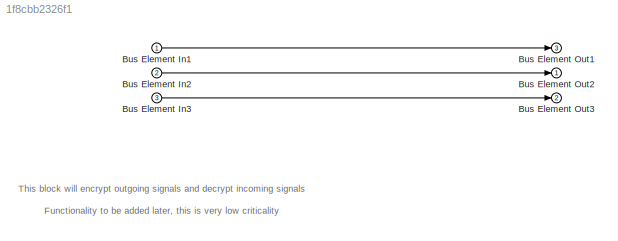
MODEL slx_1f8cbb2326f1
KIND model
CONFIG AbsTol = auto
CONFIG EnableMultiTasking = off
CONFIG FixedStep = auto
CONFIG MaxStep = auto
CONFIG MinStep = auto
CONFIG RelTol = 1e-3
CONFIG SampleTimeConstraint = Unconstrained
CONFIG SolverName = VariableStepAuto
CONFIG StartTime = 0.0
CONFIG StopTime = 10.0
BLOCK [Inport] Bus Element In1
BLOCK [Inport] Bus Element In2
  Port = 2
BLOCK [Inport] Bus Element In3
  Port = 3
BLOCK [Outport] Bus Element Out1
  Port = 3
BLOCK [Outport] Bus Element Out2
BLOCK [Outport] Bus Element Out3
  Port = 2
ANNOTATION (root): This block will encrypt outgoing signals and decrypt incoming signals Functionality to be added later, this is very low criticality
LINE Bus Element In1:1 -> Bus Element Out1:1
LINE Bus Element In2:1 -> Bus Element Out2:1
LINE Bus Element In3:1 -> Bus Element Out3:1
